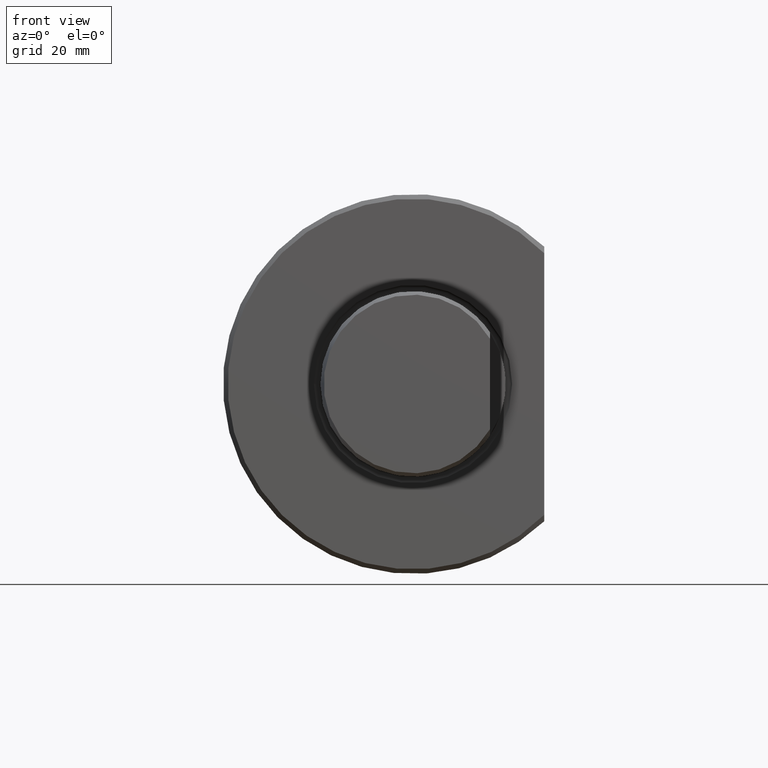
[diagram: clean part render]
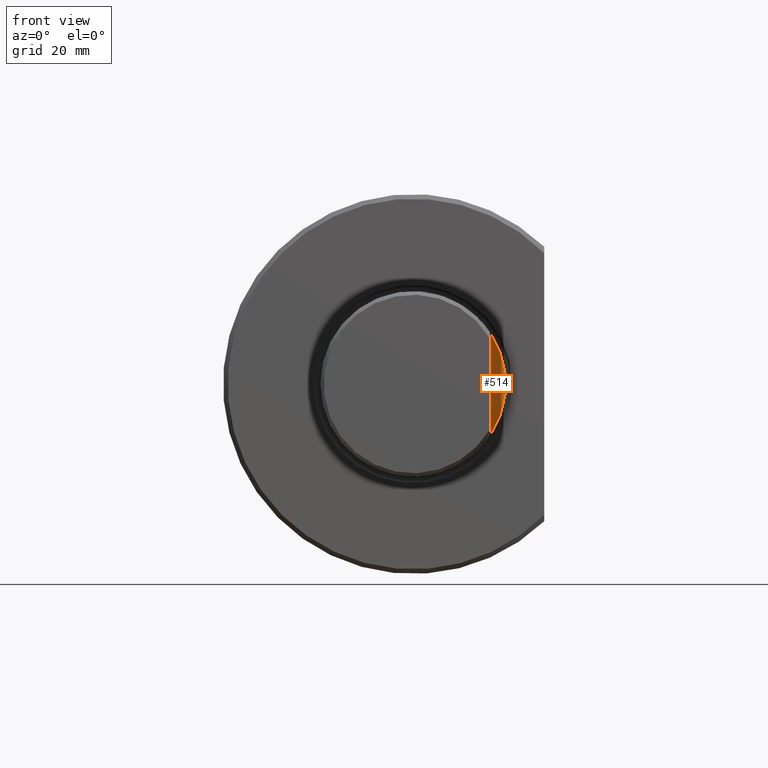
[diagram: same view with one face highlighted and labeled with its STEP entity id]
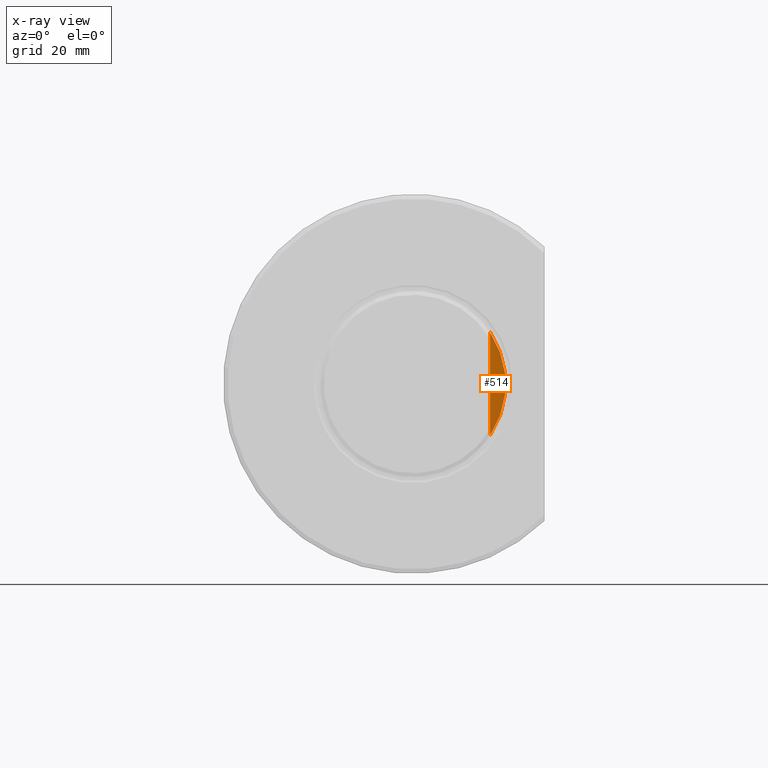
[diagram: x-ray of the same camera — body ghosted, the highlighted face saturated]
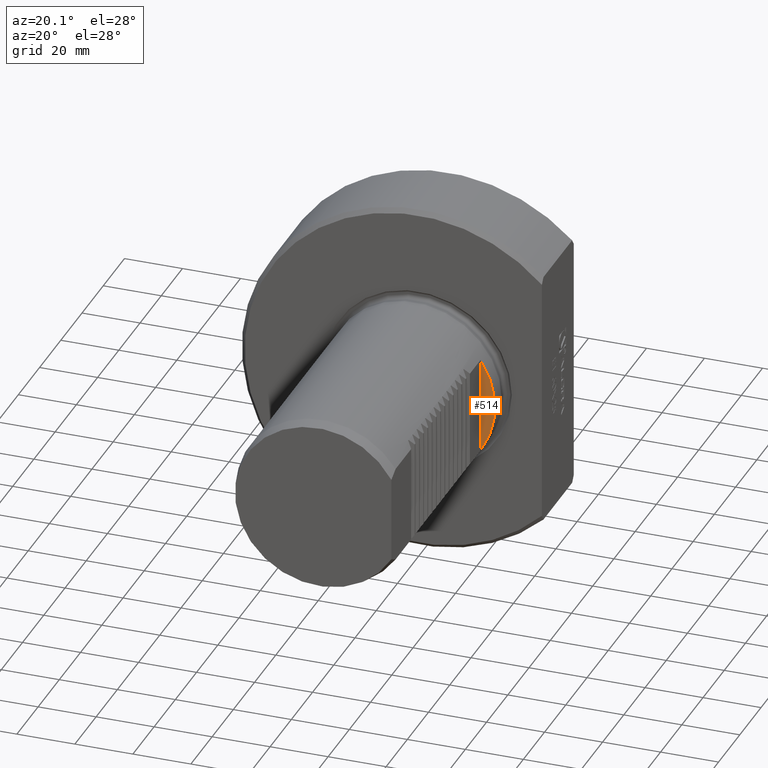
[diagram: same view with one face highlighted and labeled with its STEP entity id]
A machine part, front view. The second image highlights one B-rep face of the part: STEP entity #514.
The next image is the same camera in x-ray: the body ghosted, the highlighted face saturated — about 0% of this face is hidden behind the body in this view.
A second angle (auxiliary view) of the same face is appended — the face is thin or edge-on in the first view.
In plain terms, the highlighted planar face has unit normal (0, -1, 0).
Its self-contained STEP definition (entity closure, byte-faithful):
#514 = ADVANCED_FACE ( 'Defeature completata1_22', ( #13706 ), #1844, .T. ) ;
#1040 = CARTESIAN_POINT ( 'NONE',  ( 1.295371175675668802E-15, -9.999999999999987566, 0.000000000000000000 ) ) ;
#1775 = AXIS2_PLACEMENT_3D ( 'NONE', #12584, #4935, #12786 ) ;
#1844 = PLANE ( 'NONE',  #1775 ) ;
#2087 = DIRECTION ( 'NONE',  ( -0.000000000000000000, -0.000000000000000000, -1.000000000000000000 ) ) ;
#2871 = CARTESIAN_POINT ( 'NONE',  ( 25.00000000000001066, -9.999999999999987566, 16.58312395177697596 ) ) ;
#3074 = VERTEX_POINT ( 'NONE', #10676 ) ;
#4311 = DIRECTION ( 'NONE',  ( -8.881784197001252323E-16, 0.000000000000000000, -1.000000000000000000 ) ) ;
#4614 = ORIENTED_EDGE ( 'NONE', *, *, #11301, .T. ) ;
#4935 = DIRECTION ( 'NONE',  ( 0.000000000000000000, -1.000000000000000000, 0.000000000000000000 ) ) ;
#6207 = AXIS2_PLACEMENT_3D ( 'NONE', #1040, #12096, #4311 ) ;
#7031 = EDGE_LOOP ( 'NONE', ( #4614, #13639 ) ) ;
#8675 = EDGE_CURVE ( 'NONE', #14010, #3074, #12342, .T. ) ;
#9638 = LINE ( 'NONE', #14002, #12083 ) ;
#10676 = CARTESIAN_POINT ( 'NONE',  ( 25.00000000000001066, -9.999999999999987566, -16.58312395177697596 ) ) ;
#11301 = EDGE_CURVE ( 'NONE', #14010, #3074, #9638, .T. ) ;
#12083 = VECTOR ( 'NONE', #2087, 1000.000000000000000 ) ;
#12096 = DIRECTION ( 'NONE',  ( -0.000000000000000000, 1.000000000000000000, -0.000000000000000000 ) ) ;
#12342 = CIRCLE ( 'NONE', #6207, 30.00000000000000000 ) ;
#12584 = CARTESIAN_POINT ( 'NONE',  ( 0.000000000000000000, -9.999999999999987566, 34.00000000000000711 ) ) ;
#12786 = DIRECTION ( 'NONE',  ( 0.000000000000000000, -0.000000000000000000, -1.000000000000000000 ) ) ;
#13639 = ORIENTED_EDGE ( 'NONE', *, *, #8675, .F. ) ;
#13706 = FACE_OUTER_BOUND ( 'NONE', #7031, .T. ) ;
#14002 = CARTESIAN_POINT ( 'NONE',  ( 25.00000000000001066, -9.999999999999987566, 34.00000000000000711 ) ) ;
#14010 = VERTEX_POINT ( 'NONE', #2871 ) ;